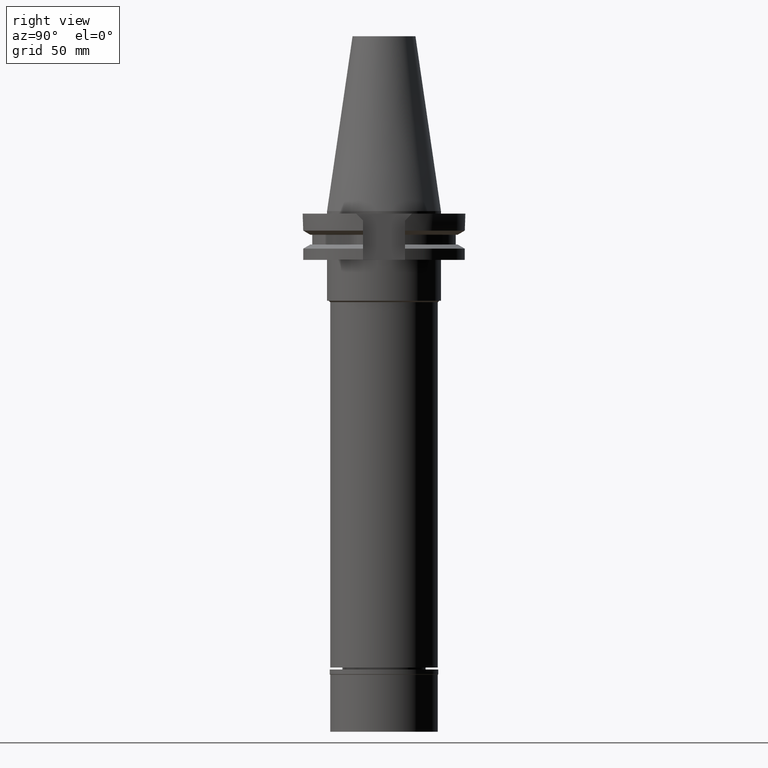
[diagram: clean part render]
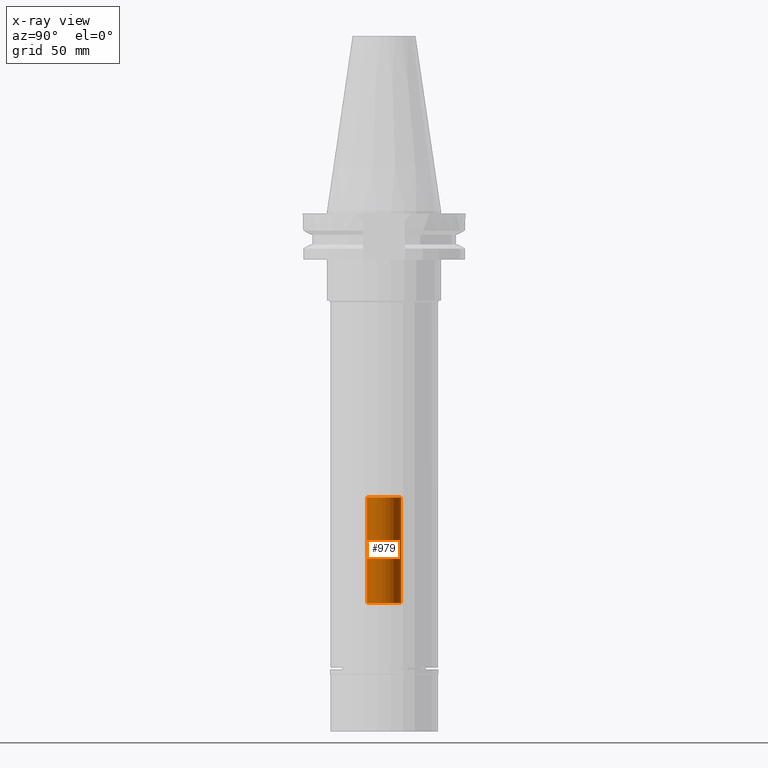
[diagram: x-ray — body ghosted, one internal face saturated and labeled with its STEP entity id]
A machine part, right view, then the same camera in x-ray: the body is ghosted and one INTERNAL B-rep face — a face not visible from any outside direction — is saturated and labeled: STEP entity #979.
In plain terms, the highlighted cylindrical surface (edge-blend (fillet) strip) has radius 6.65 mm, axis along (0, 0, -1).
Its self-contained STEP definition (entity closure, byte-faithful):
#48 = CARTESIAN_POINT ( 'NONE',  ( 0.0000000000000000000, -6.649999999999999467, -153.0000000000000000 ) ) ;
#342 = CIRCLE ( 'NONE', #2747, 6.649999999999999467 ) ;
#353 = VERTEX_POINT ( 'NONE', #1319 ) ;
#415 = EDGE_CURVE ( 'NONE', #353, #1921, #342, .T. ) ;
#443 = AXIS2_PLACEMENT_3D ( 'NONE', #2655, #901, #585 ) ;
#577 = EDGE_CURVE ( 'NONE', #3170, #897, #2992, .T. ) ;
#585 = DIRECTION ( 'NONE',  ( 0.0000000000000000000, -1.000000000000000000, 0.0000000000000000000 ) ) ;
#622 = ORIENTED_EDGE ( 'NONE', *, *, #577, .T. ) ;
#862 = FACE_OUTER_BOUND ( 'NONE', #2375, .T. ) ;
#867 = DIRECTION ( 'NONE',  ( 0.0000000000000000000, -1.000000000000000000, 0.0000000000000000000 ) ) ;
#897 = VERTEX_POINT ( 'NONE', #48 ) ;
#901 = DIRECTION ( 'NONE',  ( 0.0000000000000000000, 0.0000000000000000000, -1.000000000000000000 ) ) ;
#979 = ADVANCED_FACE ( 'NONE', ( #862 ), #2183, .F. ) ;
#1083 = LINE ( 'NONE', #2419, #1251 ) ;
#1105 = DIRECTION ( 'NONE',  ( 0.0000000000000000000, 0.0000000000000000000, 1.000000000000000000 ) ) ;
#1118 = ORIENTED_EDGE ( 'NONE', *, *, #415, .T. ) ;
#1225 = DIRECTION ( 'NONE',  ( 0.0000000000000000000, 0.0000000000000000000, -1.000000000000000000 ) ) ;
#1251 = VECTOR ( 'NONE', #2381, 1000.000000000000000 ) ;
#1319 = CARTESIAN_POINT ( 'NONE',  ( 0.0000000000000000000, -6.649999999999999467, -111.7500000000000000 ) ) ;
#1355 = CARTESIAN_POINT ( 'NONE',  ( 0.0000000000000000000, 6.649999999999999467, -111.7500000000000000 ) ) ;
#1420 = CARTESIAN_POINT ( 'NONE',  ( 0.0000000000000000000, 2.222091000882999701E-14, -111.7500000000000000 ) ) ;
#1427 = LINE ( 'NONE', #2630, #1796 ) ;
#1657 = DIRECTION ( 'NONE',  ( 0.0000000000000000000, 0.0000000000000000000, 1.000000000000000000 ) ) ;
#1796 = VECTOR ( 'NONE', #1105, 1000.000000000000000 ) ;
#1809 = EDGE_CURVE ( 'NONE', #897, #353, #1427, .T. ) ;
#1921 = VERTEX_POINT ( 'NONE', #1355 ) ;
#1959 = ORIENTED_EDGE ( 'NONE', *, *, #2329, .F. ) ;
#2018 = CARTESIAN_POINT ( 'NONE',  ( 0.0000000000000000000, 2.222091000882999701E-14, -153.0000000000000000 ) ) ;
#2183 = CYLINDRICAL_SURFACE ( 'NONE', #443, 6.649999999999999467 ) ;
#2329 = EDGE_CURVE ( 'NONE', #3170, #1921, #1083, .T. ) ;
#2375 = EDGE_LOOP ( 'NONE', ( #622, #2397, #1118, #1959 ) ) ;
#2381 = DIRECTION ( 'NONE',  ( 0.0000000000000000000, 0.0000000000000000000, 1.000000000000000000 ) ) ;
#2397 = ORIENTED_EDGE ( 'NONE', *, *, #1809, .T. ) ;
#2419 = CARTESIAN_POINT ( 'NONE',  ( 0.0000000000000000000, 6.649999999999999467, -153.0000000000000000 ) ) ;
#2630 = CARTESIAN_POINT ( 'NONE',  ( 0.0000000000000000000, -6.649999999999999467, -153.0000000000000000 ) ) ;
#2655 = CARTESIAN_POINT ( 'NONE',  ( 0.0000000000000000000, 2.222091000882999701E-14, 81.44750000000000512 ) ) ;
#2675 = CARTESIAN_POINT ( 'NONE',  ( 0.0000000000000000000, 6.649999999999999467, -153.0000000000000000 ) ) ;
#2747 = AXIS2_PLACEMENT_3D ( 'NONE', #1420, #1657, #867 ) ;
#2992 = CIRCLE ( 'NONE', #3098, 6.649999999999999467 ) ;
#3098 = AXIS2_PLACEMENT_3D ( 'NONE', #2018, #1225, #3287 ) ;
#3170 = VERTEX_POINT ( 'NONE', #2675 ) ;
#3287 = DIRECTION ( 'NONE',  ( 0.0000000000000000000, 1.000000000000000000, 0.0000000000000000000 ) ) ;